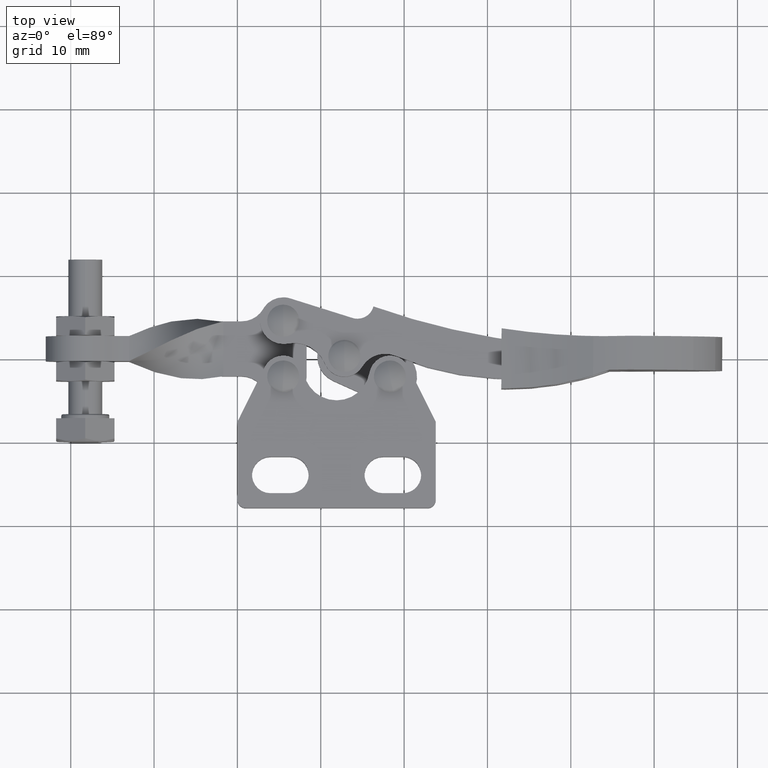
[diagram: clean part render]
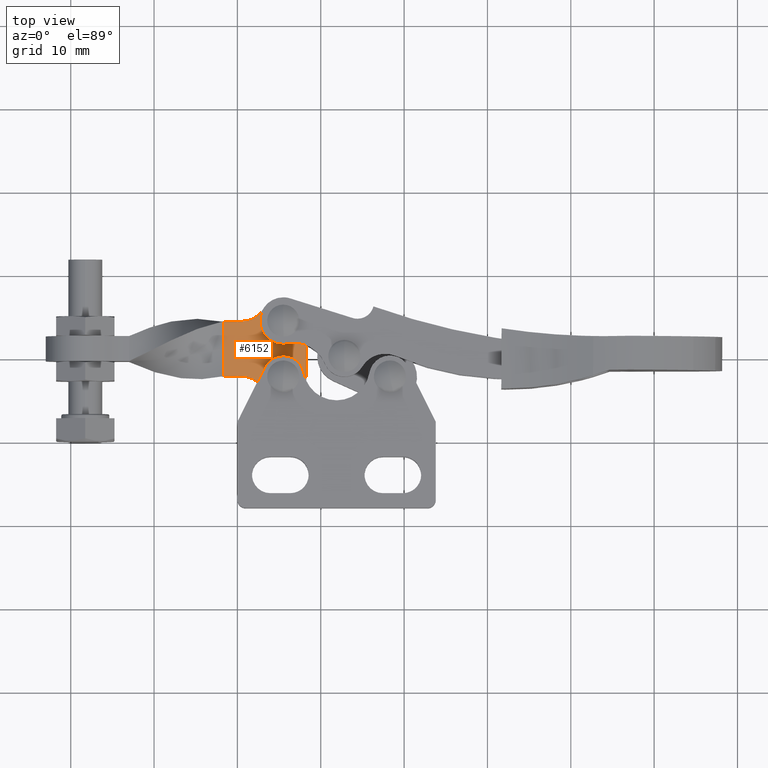
[diagram: same view with one face highlighted and labeled with its STEP entity id]
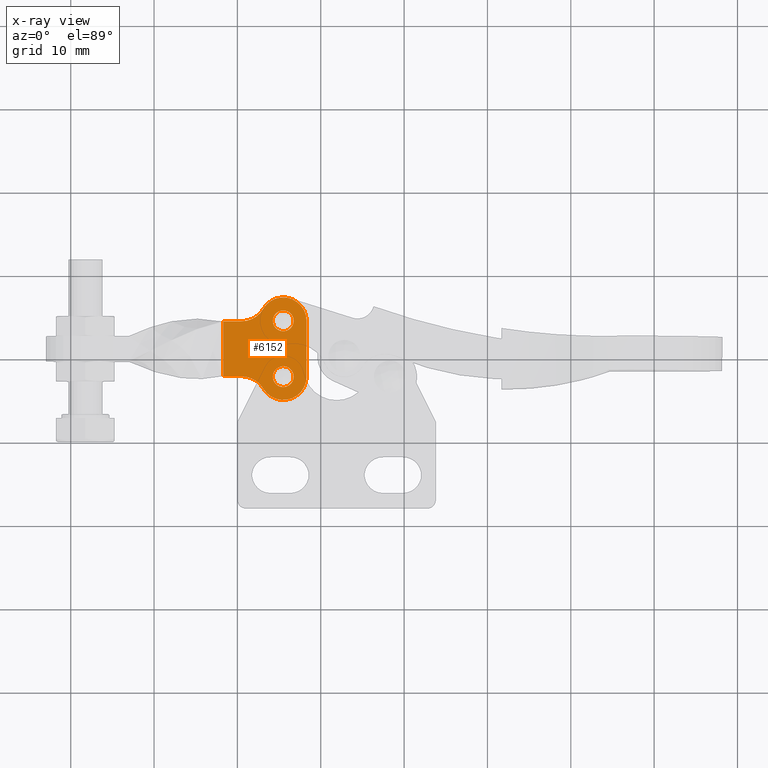
[diagram: x-ray of the same camera — body ghosted, the highlighted face saturated]
A machine part, top view. The second image highlights one B-rep face of the part: STEP entity #6152.
The next image is the same camera in x-ray: the body ghosted, the highlighted face saturated — about 0% of this face is hidden behind the body in this view.
In plain terms, the highlighted planar face has unit normal (-0, 0, 1).
Its self-contained STEP definition (entity closure, byte-faithful):
#157 = EDGE_CURVE ( 'NONE', #5475, #6808, #3847, .T. ) ;
#244 = DIRECTION ( 'NONE',  ( 3.097720492815705500E-016, 1.000000000000000000, 0.0000000000000000000 ) ) ;
#249 = CARTESIAN_POINT ( 'NONE',  ( 0.5062539111393635800, 7.850000000000793700, 0.0000000000000000000 ) ) ;
#448 = ORIENTED_EDGE ( 'NONE', *, *, #841, .F. ) ;
#522 = ORIENTED_EDGE ( 'NONE', *, *, #921, .F. ) ;
#572 = CARTESIAN_POINT ( 'NONE',  ( 0.5062539111393253900, 4.850000000000808800, 0.0000000000000000000 ) ) ;
#578 = CARTESIAN_POINT ( 'NONE',  ( 8.299999999998700400, 14.50000000000090800, 0.0000000000000000000 ) ) ;
#603 = PLANE ( 'NONE',  #1886 ) ;
#644 = DIRECTION ( 'NONE',  ( 1.000000000000000000, 0.0000000000000000000, 0.0000000000000000000 ) ) ;
#681 = VERTEX_POINT ( 'NONE', #7819 ) ;
#712 = FACE_BOUND ( 'NONE', #8998, .T. ) ;
#736 = CARTESIAN_POINT ( 'NONE',  ( 6.749999999998759200, 14.50000000000084700, 0.0000000000000000000 ) ) ;
#841 = EDGE_CURVE ( 'NONE', #5475, #6039, #6255, .T. ) ;
#882 = EDGE_CURVE ( 'NONE', #681, #8397, #6019, .T. ) ;
#884 = CIRCLE ( 'NONE', #3278, 1.250000000000000200 ) ;
#889 = DIRECTION ( 'NONE',  ( -2.478176394252564400E-015, 1.000000000000000000, 0.0000000000000000000 ) ) ;
#921 = EDGE_CURVE ( 'NONE', #5604, #4682, #1459, .T. ) ;
#956 = CARTESIAN_POINT ( 'NONE',  ( 0.5062539111392837500, 14.45000000000090700, 4.336808689942017700E-015 ) ) ;
#1032 = CARTESIAN_POINT ( 'NONE',  ( -1.700000000001106800, 7.850000000000793700, 4.336808689942017700E-016 ) ) ;
#1208 = VERTEX_POINT ( 'NONE', #8316 ) ;
#1225 = DIRECTION ( 'NONE',  ( -4.416037087338935900E-014, 1.000000000000000000, 5.440092820663268600E-015 ) ) ;
#1241 = CARTESIAN_POINT ( 'NONE',  ( 3.089226026066666600, 15.92413793103537500, 0.0000000000000000000 ) ) ;
#1304 = ORIENTED_EDGE ( 'NONE', *, *, #5649, .T. ) ;
#1303 = VECTOR ( 'NONE', #9095, 1000.000000000000000 ) ;
#1340 = CARTESIAN_POINT ( 'NONE',  ( 5.499999999998762800, 7.800000000000904900, 0.0000000000000000000 ) ) ;
#1342 = DIRECTION ( 'NONE',  ( -1.995021649829753900E-021, 1.914701819192296700E-048, 1.000000000000000000 ) ) ;
#1406 = DIRECTION ( 'NONE',  ( 1.000000000000000000, -1.605231506121631400E-014, 4.285477121120451600E-015 ) ) ;
#1449 = AXIS2_PLACEMENT_3D ( 'NONE', #2654, #7761, #3395 ) ;
#1459 = CIRCLE ( 'NONE', #2373, 1.250000000000000200 ) ;
#1498 = VECTOR ( 'NONE', #1225, 1000.000000000000000 ) ;
#1614 = AXIS2_PLACEMENT_3D ( 'NONE', #6694, #3874, #889 ) ;
#1816 = DIRECTION ( 'NONE',  ( 0.0000000000000000000, 0.0000000000000000000, 1.000000000000000000 ) ) ;
#1886 = AXIS2_PLACEMENT_3D ( 'NONE', #572, #1342, #6436 ) ;
#1893 = VECTOR ( 'NONE', #1406, 1000.000000000000000 ) ;
#2075 = CARTESIAN_POINT ( 'NONE',  ( 0.5062539111393253900, 4.850000000000809700, -8.673617379884035500E-016 ) ) ;
#2092 = DIRECTION ( 'NONE',  ( 1.000000000000000000, 0.0000000000000000000, 0.0000000000000000000 ) ) ;
#2373 = AXIS2_PLACEMENT_3D ( 'NONE', #4780, #9237, #7784 ) ;
#2385 = ORIENTED_EDGE ( 'NONE', *, *, #7058, .T. ) ;
#2571 = CIRCLE ( 'NONE', #7337, 2.999999999999967100 ) ;
#2628 = DIRECTION ( 'NONE',  ( -1.801006175791694200E-014, 1.000000000000000000, 6.383782391594650100E-015 ) ) ;
#2654 = CARTESIAN_POINT ( 'NONE',  ( 0.5062539111393183900, 17.45000000000087700, 0.0000000000000000000 ) ) ;
#2752 = ORIENTED_EDGE ( 'NONE', *, *, #4810, .T. ) ;
#2810 = DIRECTION ( 'NONE',  ( -6.505213034913097600E-016, 1.000000000000000000, 0.0000000000000000000 ) ) ;
#2958 = VERTEX_POINT ( 'NONE', #578 ) ;
#3278 = AXIS2_PLACEMENT_3D ( 'NONE', #1340, #6435, #2092 ) ;
#3395 = DIRECTION ( 'NONE',  ( -6.505213034913126200E-016, 1.000000000000000000, 0.0000000000000000000 ) ) ;
#3398 = VERTEX_POINT ( 'NONE', #1241 ) ;
#3465 = LINE ( 'NONE', #5598, #1498 ) ;
#3774 = EDGE_CURVE ( 'NONE', #2958, #3398, #5537, .T. ) ;
#3847 = LINE ( 'NONE', #7169, #1893 ) ;
#3874 = DIRECTION ( 'NONE',  ( -1.995021649832065000E-021, -0.0000000000000000000, 1.000000000000000000 ) ) ;
#3912 = ORIENTED_EDGE ( 'NONE', *, *, #5534, .T. ) ;
#3919 = CARTESIAN_POINT ( 'NONE',  ( -0.5968730444309878800, 14.45000000000088900, 1.301042606982605300E-015 ) ) ;
#3943 = CIRCLE ( 'NONE', #1449, 2.999999999999954300 ) ;
#4222 = CARTESIAN_POINT ( 'NONE',  ( 4.249999999998759200, 14.50000000000084700, 0.0000000000000000000 ) ) ;
#4343 = VECTOR ( 'NONE', #2628, 1000.000000000000000 ) ;
#4682 = VERTEX_POINT ( 'NONE', #736 ) ;
#4780 = CARTESIAN_POINT ( 'NONE',  ( 5.499999999998759200, 14.50000000000084700, 0.0000000000000000000 ) ) ;
#4810 = EDGE_CURVE ( 'NONE', #7940, #6039, #7135, .T. ) ;
#4819 = EDGE_LOOP ( 'NONE', ( #8990, #8859 ) ) ;
#5018 = DIRECTION ( 'NONE',  ( 0.0000000000000000000, 0.0000000000000000000, 1.000000000000000000 ) ) ;
#5037 = CIRCLE ( 'NONE', #9456, 1.250000000000000200 ) ;
#5475 = VERTEX_POINT ( 'NONE', #1032 ) ;
#5534 = EDGE_CURVE ( 'NONE', #3398, #7940, #3943, .T. ) ;
#5537 = CIRCLE ( 'NONE', #1614, 2.800000000000019400 ) ;
#5583 = CIRCLE ( 'NONE', #7648, 1.250000000000000200 ) ;
#5598 = CARTESIAN_POINT ( 'NONE',  ( 8.299999999998750200, 11.15000000000086000, -8.673617379884035500E-016 ) ) ;
#5604 = VERTEX_POINT ( 'NONE', #4222 ) ;
#5649 = EDGE_CURVE ( 'NONE', #6808, #681, #2571, .T. ) ;
#5730 = FACE_OUTER_BOUND ( 'NONE', #9363, .T. ) ;
#5826 = CARTESIAN_POINT ( 'NONE',  ( 8.299999999998870900, 7.800000000000964400, -4.336808689942017700E-016 ) ) ;
#6012 = CARTESIAN_POINT ( 'NONE',  ( 5.499999999998762800, 7.800000000000904900, -8.673617379884035500E-016 ) ) ;
#6019 = CIRCLE ( 'NONE', #7928, 2.800000000000019400 ) ;
#6039 = VERTEX_POINT ( 'NONE', #7807 ) ;
#6152 = ADVANCED_FACE ( 'NONE', ( #5730, #6308, #712 ), #603, .T. ) ;
#6172 = CARTESIAN_POINT ( 'NONE',  ( 5.499999999998759200, 14.50000000000084700, 0.0000000000000000000 ) ) ;
#6255 = LINE ( 'NONE', #8174, #4343 ) ;
#6308 = FACE_BOUND ( 'NONE', #4819, .T. ) ;
#6435 = DIRECTION ( 'NONE',  ( 0.0000000000000000000, 0.0000000000000000000, 1.000000000000000000 ) ) ;
#6436 = DIRECTION ( 'NONE',  ( 1.000000000000000000, 8.285109029773513300E-016, 1.995021649829753900E-021 ) ) ;
#6694 = CARTESIAN_POINT ( 'NONE',  ( 5.499999999998759200, 14.50000000000084700, -4.336808689942017700E-016 ) ) ;
#6778 = DIRECTION ( 'NONE',  ( -1.995021649832065000E-021, -0.0000000000000000000, 1.000000000000000000 ) ) ;
#6808 = VERTEX_POINT ( 'NONE', #249 ) ;
#6900 = DIRECTION ( 'NONE',  ( 1.000000000000000000, 0.0000000000000000000, 0.0000000000000000000 ) ) ;
#6939 = EDGE_CURVE ( 'NONE', #4682, #5604, #5037, .T. ) ;
#7029 = ORIENTED_EDGE ( 'NONE', *, *, #157, .T. ) ;
#7058 = EDGE_CURVE ( 'NONE', #8397, #2958, #3465, .T. ) ;
#7135 = LINE ( 'NONE', #3919, #1303 ) ;
#7169 = CARTESIAN_POINT ( 'NONE',  ( -0.5968730444309254800, 7.850000000000800800, -3.035766082959412400E-015 ) ) ;
#7171 = DIRECTION ( 'NONE',  ( 1.995021649832065000E-021, 0.0000000000000000000, -1.000000000000000000 ) ) ;
#7337 = AXIS2_PLACEMENT_3D ( 'NONE', #2075, #7171, #2810 ) ;
#7517 = CARTESIAN_POINT ( 'NONE',  ( 6.749999999998762800, 7.800000000000904900, 0.0000000000000000000 ) ) ;
#7648 = AXIS2_PLACEMENT_3D ( 'NONE', #9499, #5018, #644 ) ;
#7668 = EDGE_CURVE ( 'NONE', #1208, #7901, #5583, .T. ) ;
#7761 = DIRECTION ( 'NONE',  ( 1.995021649832065000E-021, 0.0000000000000000000, -1.000000000000000000 ) ) ;
#7784 = DIRECTION ( 'NONE',  ( 1.000000000000000000, 0.0000000000000000000, 0.0000000000000000000 ) ) ;
#7807 = CARTESIAN_POINT ( 'NONE',  ( -1.700000000001224800, 14.45000000000086600, 1.517883041479706200E-014 ) ) ;
#7819 = CARTESIAN_POINT ( 'NONE',  ( 3.089226026066621800, 6.375862068966326600, -8.673617379884035500E-016 ) ) ;
#7901 = VERTEX_POINT ( 'NONE', #7517 ) ;
#7928 = AXIS2_PLACEMENT_3D ( 'NONE', #6012, #6778, #244 ) ;
#7940 = VERTEX_POINT ( 'NONE', #956 ) ;
#8174 = CARTESIAN_POINT ( 'NONE',  ( -1.700000000001228300, 11.15000000000084200, 9.107298248878237200E-015 ) ) ;
#8316 = CARTESIAN_POINT ( 'NONE',  ( 4.249999999998762800, 7.800000000000904900, 0.0000000000000000000 ) ) ;
#8397 = VERTEX_POINT ( 'NONE', #5826 ) ;
#8428 = ORIENTED_EDGE ( 'NONE', *, *, #3774, .T. ) ;
#8859 = ORIENTED_EDGE ( 'NONE', *, *, #7668, .F. ) ;
#8990 = ORIENTED_EDGE ( 'NONE', *, *, #9377, .F. ) ;
#8998 = EDGE_LOOP ( 'NONE', ( #9074, #522 ) ) ;
#9074 = ORIENTED_EDGE ( 'NONE', *, *, #6939, .F. ) ;
#9095 = DIRECTION ( 'NONE',  ( -1.000000000000000000, -1.814251695916933300E-014, -6.582021007330930400E-015 ) ) ;
#9169 = ORIENTED_EDGE ( 'NONE', *, *, #882, .T. ) ;
#9237 = DIRECTION ( 'NONE',  ( 0.0000000000000000000, 0.0000000000000000000, 1.000000000000000000 ) ) ;
#9363 = EDGE_LOOP ( 'NONE', ( #448, #7029, #1304, #9169, #2385, #8428, #3912, #2752 ) ) ;
#9377 = EDGE_CURVE ( 'NONE', #7901, #1208, #884, .T. ) ;
#9456 = AXIS2_PLACEMENT_3D ( 'NONE', #6172, #1816, #6900 ) ;
#9499 = CARTESIAN_POINT ( 'NONE',  ( 5.499999999998762800, 7.800000000000904900, 0.0000000000000000000 ) ) ;